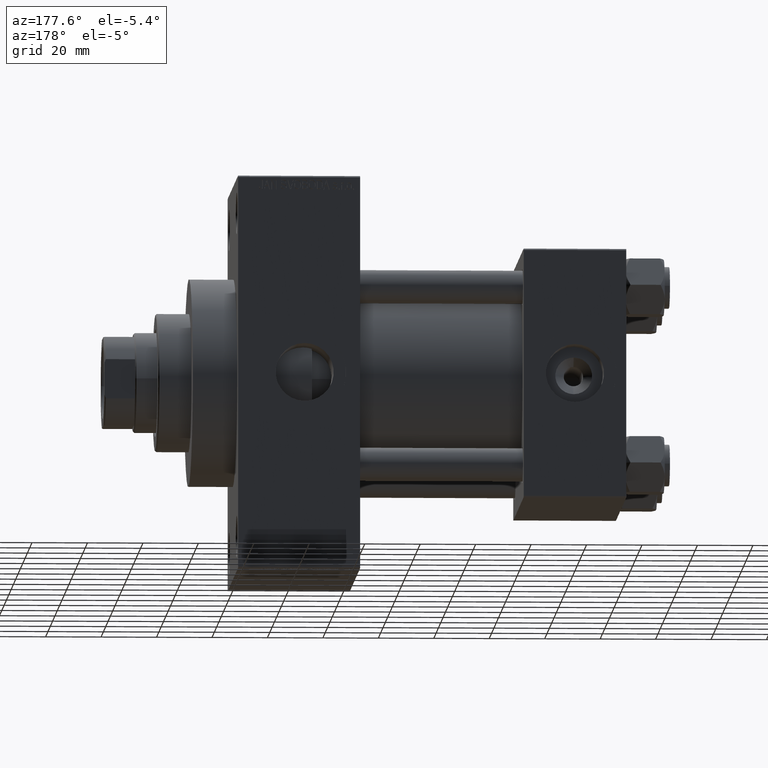
[diagram: clean part render]
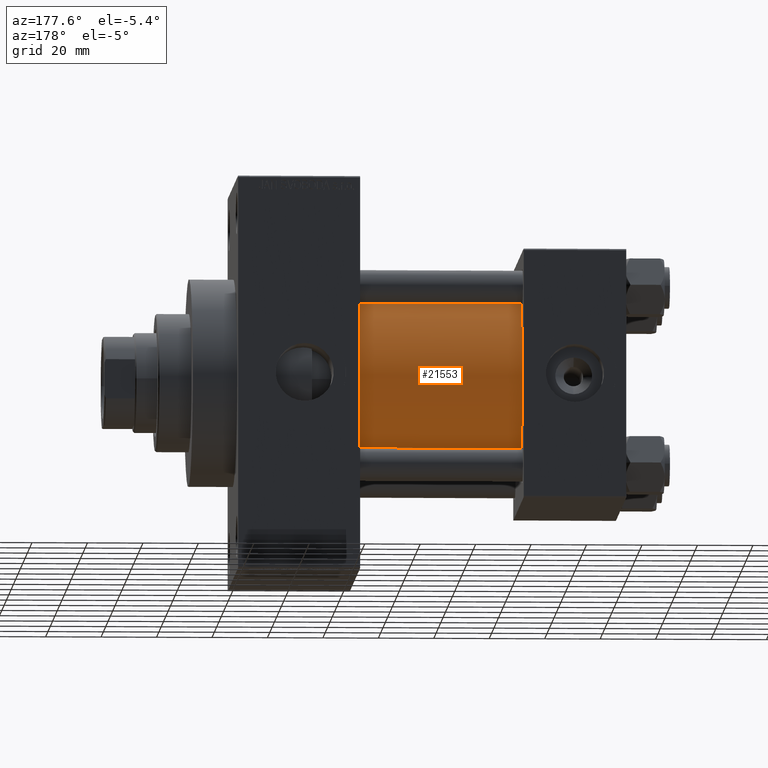
[diagram: same view with one face highlighted and labeled with its STEP entity id]
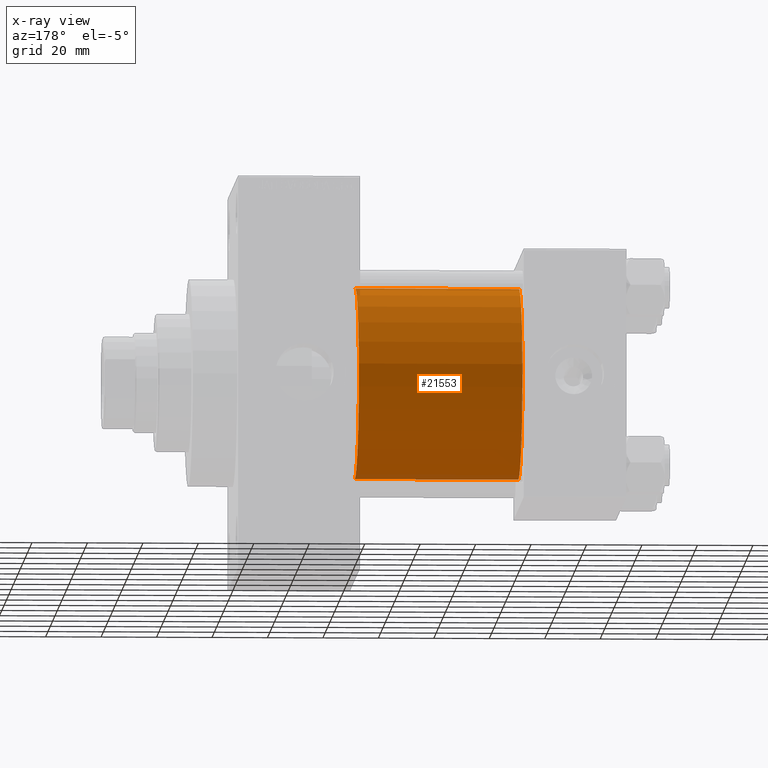
[diagram: x-ray of the same camera — body ghosted, the highlighted face saturated]
A machine part, auxiliary view. The second image highlights one B-rep face of the part: STEP entity #21553.
The next image is the same camera in x-ray: the body ghosted, the highlighted face saturated — about 3% of this face is hidden behind the body in this view.
In plain terms, the highlighted cylindrical surface (partial cylindrical patch) has radius 34.5 mm, axis along (-1, -0, -0).
Its self-contained STEP definition (entity closure, byte-faithful):
#774 = CIRCLE ( 'NONE', #38891, 34.50000000000000000 ) ;
#1150 = ORIENTED_EDGE ( 'NONE', *, *, #18346, .F. ) ;
#1613 = CYLINDRICAL_SURFACE ( 'NONE', #34415, 34.50000000000000000 ) ;
#1701 = CARTESIAN_POINT ( 'NONE',  ( 96.00000000000000000, -2.602085213965210642E-15, 0.000000000000000000 ) ) ;
#1861 = CARTESIAN_POINT ( 'NONE',  ( 96.00000000000000000, -2.602085213965210642E-15, 0.000000000000000000 ) ) ;
#2015 = VERTEX_POINT ( 'NONE', #35628 ) ;
#4287 = EDGE_LOOP ( 'NONE', ( #45888, #19571, #19211, #1150 ) ) ;
#5529 = DIRECTION ( 'NONE',  ( 0.000000000000000000, 0.000000000000000000, -1.000000000000000000 ) ) ;
#6201 = EDGE_CURVE ( 'NONE', #12605, #12362, #13986, .T. ) ;
#7577 = DIRECTION ( 'NONE',  ( -1.000000000000000000, -0.000000000000000000, -0.000000000000000000 ) ) ;
#9270 = CARTESIAN_POINT ( 'NONE',  ( 96.00000000000000000, -2.602085213965210642E-15, 34.50000000000000000 ) ) ;
#9930 = CARTESIAN_POINT ( 'NONE',  ( 96.00000000000000000, 1.622946243093158675E-15, -34.50000000000000000 ) ) ;
#11608 = CARTESIAN_POINT ( 'NONE',  ( 96.00000000000000000, 1.622946243093158675E-15, -34.50000000000000000 ) ) ;
#12362 = VERTEX_POINT ( 'NONE', #9270 ) ;
#12605 = VERTEX_POINT ( 'NONE', #9930 ) ;
#13466 = CARTESIAN_POINT ( 'NONE',  ( 96.00000000000000000, -2.602085213965210642E-15, 34.50000000000000000 ) ) ;
#13930 = DIRECTION ( 'NONE',  ( -1.000000000000000000, -0.000000000000000000, -0.000000000000000000 ) ) ;
#13986 = CIRCLE ( 'NONE', #44502, 34.50000000000000000 ) ;
#15834 = DIRECTION ( 'NONE',  ( 1.000000000000000000, -0.000000000000000000, 0.000000000000000000 ) ) ;
#15925 = DIRECTION ( 'NONE',  ( -1.000000000000000000, -0.000000000000000000, -0.000000000000000000 ) ) ;
#16399 = DIRECTION ( 'NONE',  ( 0.000000000000000000, 0.000000000000000000, 1.000000000000000000 ) ) ;
#18346 = EDGE_CURVE ( 'NONE', #12362, #30702, #39247, .T. ) ;
#18915 = CARTESIAN_POINT ( 'NONE',  ( 37.00000000000000000, -2.602085213965210642E-15, 34.50000000000000000 ) ) ;
#19211 = ORIENTED_EDGE ( 'NONE', *, *, #45733, .T. ) ;
#19571 = ORIENTED_EDGE ( 'NONE', *, *, #37905, .T. ) ;
#20292 = VECTOR ( 'NONE', #7577, 1000.000000000000000 ) ;
#21553 = ADVANCED_FACE ( 'NONE', ( #45548 ), #1613, .T. ) ;
#26347 = CARTESIAN_POINT ( 'NONE',  ( 37.00000000000000000, -2.602085213965210642E-15, 0.000000000000000000 ) ) ;
#29261 = LINE ( 'NONE', #11608, #20292 ) ;
#29627 = VECTOR ( 'NONE', #13930, 1000.000000000000000 ) ;
#30702 = VERTEX_POINT ( 'NONE', #18915 ) ;
#34415 = AXIS2_PLACEMENT_3D ( 'NONE', #1861, #15925, #16399 ) ;
#34876 = DIRECTION ( 'NONE',  ( 1.000000000000000000, 0.000000000000000000, 0.000000000000000000 ) ) ;
#35628 = CARTESIAN_POINT ( 'NONE',  ( 37.00000000000000000, 1.622946243093158675E-15, -34.50000000000000000 ) ) ;
#37905 = EDGE_CURVE ( 'NONE', #12605, #2015, #29261, .T. ) ;
#38891 = AXIS2_PLACEMENT_3D ( 'NONE', #26347, #15834, #44054 ) ;
#39247 = LINE ( 'NONE', #13466, #29627 ) ;
#44054 = DIRECTION ( 'NONE',  ( 0.000000000000000000, 0.000000000000000000, 1.000000000000000000 ) ) ;
#44502 = AXIS2_PLACEMENT_3D ( 'NONE', #1701, #34876, #5529 ) ;
#45548 = FACE_OUTER_BOUND ( 'NONE', #4287, .T. ) ;
#45733 = EDGE_CURVE ( 'NONE', #2015, #30702, #774, .T. ) ;
#45888 = ORIENTED_EDGE ( 'NONE', *, *, #6201, .F. ) ;